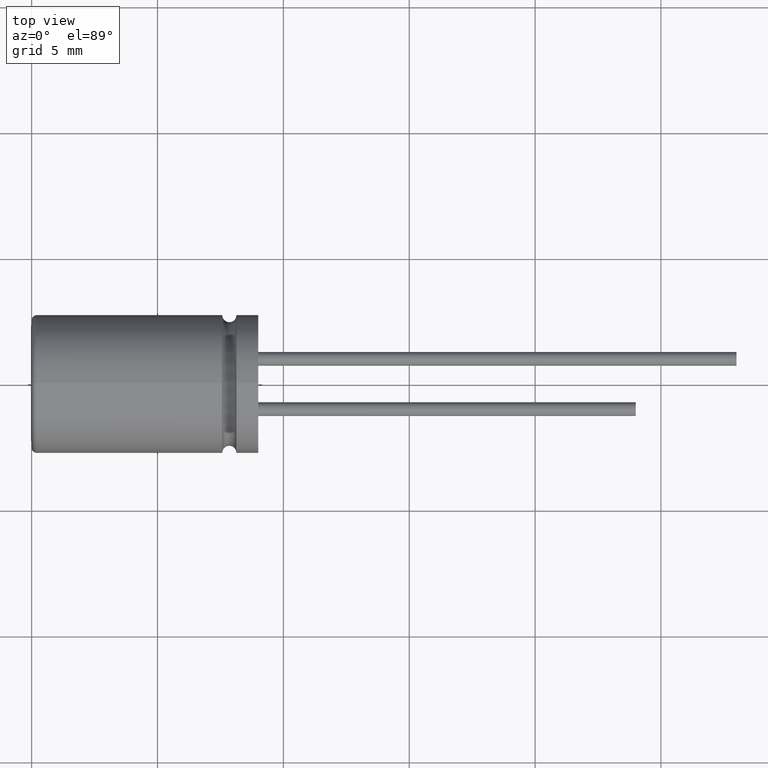
[diagram: clean part render]
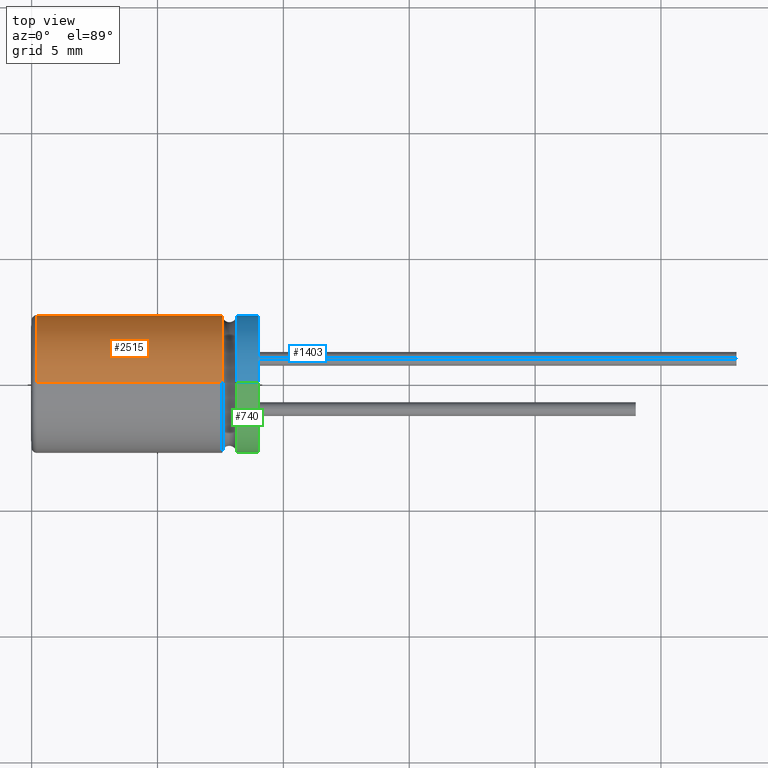
[diagram: same view with three faces highlighted in distinct colors, each labeled with its STEP entity id]
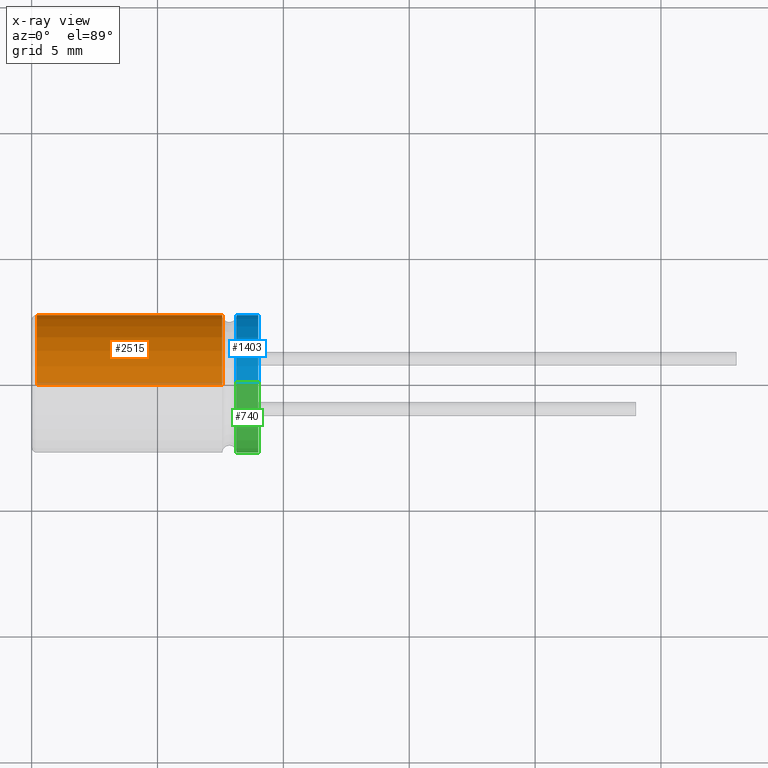
[diagram: x-ray of the same camera — body ghosted, the three highlighted faces saturated]
A machine part, top view with three faces highlighted in distinct colors.
The next image is the same camera in x-ray (body ghosted, the three faces saturated) — at least one of them is partly hidden behind the body in this view.
Their STEP definitions:

[orange] entity #2515 — the highlighted cylindrical surface (partial cylindrical patch) has radius 2.75 mm, axis along (-1, -0, -0).
#67 = FACE_OUTER_BOUND ( 'NONE', #2545, .T. ) ;
#186 = VECTOR ( 'NONE', #1826, 1000.000000000000000 ) ;
#238 = EDGE_CURVE ( 'NONE', #1297, #407, #1152, .T. ) ;
#252 = ORIENTED_EDGE ( 'NONE', *, *, #708, .F. ) ;
#281 = CARTESIAN_POINT ( 'NONE',  ( 0.2000000000000005100, 0.0000000000000000000, 0.0000000000000000000 ) ) ;
#285 = ORIENTED_EDGE ( 'NONE', *, *, #603, .F. ) ;
#407 = VERTEX_POINT ( 'NONE', #2466 ) ;
#603 = EDGE_CURVE ( 'NONE', #2948, #663, #1058, .T. ) ;
#663 = VERTEX_POINT ( 'NONE', #1021 ) ;
#708 = EDGE_CURVE ( 'NONE', #1297, #2948, #1396, .T. ) ;
#1021 = CARTESIAN_POINT ( 'NONE',  ( 0.2000000000000005100, 0.0000000000000000000, 2.750000000000000000 ) ) ;
#1058 = LINE ( 'NONE', #1434, #2098 ) ;
#1152 = LINE ( 'NONE', #1518, #186 ) ;
#1297 = VERTEX_POINT ( 'NONE', #2637 ) ;
#1396 = CIRCLE ( 'NONE', #1809, 2.750000000000000000 ) ;
#1434 = CARTESIAN_POINT ( 'NONE',  ( 9.000000000000000000, 0.0000000000000000000, 2.750000000000000000 ) ) ;
#1518 = CARTESIAN_POINT ( 'NONE',  ( 9.000000000000000000, 3.367778697655221000E-016, -2.750000000000000000 ) ) ;
#1593 = DIRECTION ( 'NONE',  ( -1.000000000000000000, -0.0000000000000000000, -0.0000000000000000000 ) ) ;
#1611 = CARTESIAN_POINT ( 'NONE',  ( 7.571249999999998300, 3.367778697655221000E-016, 2.750000000000000000 ) ) ;
#1809 = AXIS2_PLACEMENT_3D ( 'NONE', #2642, #2088, #2898 ) ;
#1826 = DIRECTION ( 'NONE',  ( -1.000000000000000000, -0.0000000000000000000, -0.0000000000000000000 ) ) ;
#1855 = CIRCLE ( 'NONE', #1959, 2.750000000000000000 ) ;
#1959 = AXIS2_PLACEMENT_3D ( 'NONE', #281, #2108, #2598 ) ;
#2006 = ORIENTED_EDGE ( 'NONE', *, *, #238, .T. ) ;
#2088 = DIRECTION ( 'NONE',  ( 1.000000000000000000, -0.0000000000000000000, -0.0000000000000000000 ) ) ;
#2098 = VECTOR ( 'NONE', #3314, 1000.000000000000000 ) ;
#2108 = DIRECTION ( 'NONE',  ( 1.000000000000000000, 0.0000000000000000000, 0.0000000000000000000 ) ) ;
#2135 = AXIS2_PLACEMENT_3D ( 'NONE', #2923, #1593, #3186 ) ;
#2400 = EDGE_CURVE ( 'NONE', #407, #663, #1855, .T. ) ;
#2466 = CARTESIAN_POINT ( 'NONE',  ( 0.2000000000000005100, 3.367778697655221000E-016, -2.750000000000000000 ) ) ;
#2515 = ADVANCED_FACE ( 'NONE', ( #67 ), #2827, .T. ) ;
#2545 = EDGE_LOOP ( 'NONE', ( #252, #2006, #3209, #285 ) ) ;
#2598 = DIRECTION ( 'NONE',  ( 0.0000000000000000000, 0.0000000000000000000, -1.000000000000000000 ) ) ;
#2637 = CARTESIAN_POINT ( 'NONE',  ( 7.571249999999998300, 0.0000000000000000000, -2.750000000000000000 ) ) ;
#2642 = CARTESIAN_POINT ( 'NONE',  ( 7.571249999999999100, 0.0000000000000000000, 0.0000000000000000000 ) ) ;
#2827 = CYLINDRICAL_SURFACE ( 'NONE', #2135, 2.750000000000000000 ) ;
#2898 = DIRECTION ( 'NONE',  ( 0.0000000000000000000, 0.0000000000000000000, -1.000000000000000000 ) ) ;
#2923 = CARTESIAN_POINT ( 'NONE',  ( 9.000000000000000000, 0.0000000000000000000, 0.0000000000000000000 ) ) ;
#2948 = VERTEX_POINT ( 'NONE', #1611 ) ;
#3186 = DIRECTION ( 'NONE',  ( 0.0000000000000000000, 0.0000000000000000000, 1.000000000000000000 ) ) ;
#3209 = ORIENTED_EDGE ( 'NONE', *, *, #2400, .T. ) ;
#3314 = DIRECTION ( 'NONE',  ( -1.000000000000000000, -0.0000000000000000000, -0.0000000000000000000 ) ) ;

[blue] entity #1403 — the highlighted cylindrical surface (partial cylindrical patch) has radius 2.75 mm, axis along (-1, -0, -0).
#383 = EDGE_LOOP ( 'NONE', ( #1598, #2711, #1791, #1494 ) ) ;
#514 = VERTEX_POINT ( 'NONE', #2984 ) ;
#580 = CARTESIAN_POINT ( 'NONE',  ( 8.133749999999999100, 0.0000000000000000000, 2.750000000000000000 ) ) ;
#795 = EDGE_CURVE ( 'NONE', #514, #3092, #805, .T. ) ;
#805 = CIRCLE ( 'NONE', #1547, 2.750000000000000000 ) ;
#844 = EDGE_CURVE ( 'NONE', #1136, #514, #2185, .T. ) ;
#893 = AXIS2_PLACEMENT_3D ( 'NONE', #2438, #2126, #3191 ) ;
#971 = VECTOR ( 'NONE', #2933, 1000.000000000000000 ) ;
#1068 = CARTESIAN_POINT ( 'NONE',  ( 9.000000000000000000, 3.367778697655221000E-016, -2.750000000000000000 ) ) ;
#1092 = CARTESIAN_POINT ( 'NONE',  ( 8.133749999999999100, 0.0000000000000000000, 0.0000000000000000000 ) ) ;
#1136 = VERTEX_POINT ( 'NONE', #1692 ) ;
#1174 = CARTESIAN_POINT ( 'NONE',  ( 9.000000000000000000, 0.0000000000000000000, 2.750000000000000000 ) ) ;
#1288 = CARTESIAN_POINT ( 'NONE',  ( 9.000000000000000000, 0.0000000000000000000, 0.0000000000000000000 ) ) ;
#1330 = DIRECTION ( 'NONE',  ( 0.0000000000000000000, 0.0000000000000000000, -1.000000000000000000 ) ) ;
#1403 = ADVANCED_FACE ( 'NONE', ( #2475 ), #3265, .T. ) ;
#1494 = ORIENTED_EDGE ( 'NONE', *, *, #1540, .F. ) ;
#1540 = EDGE_CURVE ( 'NONE', #3039, #3092, #2167, .T. ) ;
#1547 = AXIS2_PLACEMENT_3D ( 'NONE', #1092, #2915, #1330 ) ;
#1555 = DIRECTION ( 'NONE',  ( -1.000000000000000000, -0.0000000000000000000, -0.0000000000000000000 ) ) ;
#1598 = ORIENTED_EDGE ( 'NONE', *, *, #2972, .F. ) ;
#1692 = CARTESIAN_POINT ( 'NONE',  ( 9.000000000000000000, 3.367778697655221000E-016, -2.750000000000000000 ) ) ;
#1791 = ORIENTED_EDGE ( 'NONE', *, *, #795, .T. ) ;
#1932 = DIRECTION ( 'NONE',  ( -1.000000000000000000, -0.0000000000000000000, -0.0000000000000000000 ) ) ;
#2126 = DIRECTION ( 'NONE',  ( 1.000000000000000000, 0.0000000000000000000, 0.0000000000000000000 ) ) ;
#2167 = LINE ( 'NONE', #1174, #2514 ) ;
#2185 = LINE ( 'NONE', #1068, #971 ) ;
#2414 = DIRECTION ( 'NONE',  ( 0.0000000000000000000, 0.0000000000000000000, 1.000000000000000000 ) ) ;
#2438 = CARTESIAN_POINT ( 'NONE',  ( 9.000000000000000000, 0.0000000000000000000, 0.0000000000000000000 ) ) ;
#2475 = FACE_OUTER_BOUND ( 'NONE', #383, .T. ) ;
#2496 = CARTESIAN_POINT ( 'NONE',  ( 9.000000000000000000, 0.0000000000000000000, 2.750000000000000000 ) ) ;
#2514 = VECTOR ( 'NONE', #1932, 1000.000000000000000 ) ;
#2711 = ORIENTED_EDGE ( 'NONE', *, *, #844, .T. ) ;
#2859 = AXIS2_PLACEMENT_3D ( 'NONE', #1288, #1555, #2414 ) ;
#2915 = DIRECTION ( 'NONE',  ( 1.000000000000000000, -0.0000000000000000000, -0.0000000000000000000 ) ) ;
#2933 = DIRECTION ( 'NONE',  ( -1.000000000000000000, -0.0000000000000000000, -0.0000000000000000000 ) ) ;
#2938 = CIRCLE ( 'NONE', #893, 2.750000000000000000 ) ;
#2972 = EDGE_CURVE ( 'NONE', #1136, #3039, #2938, .T. ) ;
#2984 = CARTESIAN_POINT ( 'NONE',  ( 8.133749999999999100, 3.367778697655221000E-016, -2.750000000000000000 ) ) ;
#3039 = VERTEX_POINT ( 'NONE', #2496 ) ;
#3092 = VERTEX_POINT ( 'NONE', #580 ) ;
#3191 = DIRECTION ( 'NONE',  ( 0.0000000000000000000, 0.0000000000000000000, -1.000000000000000000 ) ) ;
#3265 = CYLINDRICAL_SURFACE ( 'NONE', #2859, 2.750000000000000000 ) ;

[green] entity #740 — the highlighted cylindrical surface (partial cylindrical patch) has radius 2.75 mm, axis along (-1, -0, -0).
#7 = DIRECTION ( 'NONE',  ( 0.0000000000000000000, 0.0000000000000000000, -1.000000000000000000 ) ) ;
#490 = CARTESIAN_POINT ( 'NONE',  ( 9.000000000000000000, 0.0000000000000000000, 0.0000000000000000000 ) ) ;
#514 = VERTEX_POINT ( 'NONE', #2984 ) ;
#580 = CARTESIAN_POINT ( 'NONE',  ( 8.133749999999999100, 0.0000000000000000000, 2.750000000000000000 ) ) ;
#650 = EDGE_CURVE ( 'NONE', #3092, #514, #2775, .T. ) ;
#740 = ADVANCED_FACE ( 'NONE', ( #3231 ), #974, .T. ) ;
#747 = DIRECTION ( 'NONE',  ( 1.000000000000000000, 0.0000000000000000000, 0.0000000000000000000 ) ) ;
#820 = EDGE_LOOP ( 'NONE', ( #1219, #923, #886, #1161 ) ) ;
#844 = EDGE_CURVE ( 'NONE', #1136, #514, #2185, .T. ) ;
#845 = AXIS2_PLACEMENT_3D ( 'NONE', #1270, #2073, #7 ) ;
#886 = ORIENTED_EDGE ( 'NONE', *, *, #1540, .T. ) ;
#923 = ORIENTED_EDGE ( 'NONE', *, *, #2822, .F. ) ;
#971 = VECTOR ( 'NONE', #2933, 1000.000000000000000 ) ;
#974 = CYLINDRICAL_SURFACE ( 'NONE', #1437, 2.750000000000000000 ) ;
#1033 = DIRECTION ( 'NONE',  ( -1.000000000000000000, -0.0000000000000000000, -0.0000000000000000000 ) ) ;
#1057 = AXIS2_PLACEMENT_3D ( 'NONE', #490, #747, #1315 ) ;
#1068 = CARTESIAN_POINT ( 'NONE',  ( 9.000000000000000000, 3.367778697655221000E-016, -2.750000000000000000 ) ) ;
#1136 = VERTEX_POINT ( 'NONE', #1692 ) ;
#1161 = ORIENTED_EDGE ( 'NONE', *, *, #650, .T. ) ;
#1174 = CARTESIAN_POINT ( 'NONE',  ( 9.000000000000000000, 0.0000000000000000000, 2.750000000000000000 ) ) ;
#1219 = ORIENTED_EDGE ( 'NONE', *, *, #844, .F. ) ;
#1270 = CARTESIAN_POINT ( 'NONE',  ( 8.133749999999999100, 0.0000000000000000000, 0.0000000000000000000 ) ) ;
#1315 = DIRECTION ( 'NONE',  ( 0.0000000000000000000, 0.0000000000000000000, -1.000000000000000000 ) ) ;
#1437 = AXIS2_PLACEMENT_3D ( 'NONE', #2347, #1033, #2927 ) ;
#1540 = EDGE_CURVE ( 'NONE', #3039, #3092, #2167, .T. ) ;
#1692 = CARTESIAN_POINT ( 'NONE',  ( 9.000000000000000000, 3.367778697655221000E-016, -2.750000000000000000 ) ) ;
#1932 = DIRECTION ( 'NONE',  ( -1.000000000000000000, -0.0000000000000000000, -0.0000000000000000000 ) ) ;
#2073 = DIRECTION ( 'NONE',  ( 1.000000000000000000, -0.0000000000000000000, -0.0000000000000000000 ) ) ;
#2167 = LINE ( 'NONE', #1174, #2514 ) ;
#2185 = LINE ( 'NONE', #1068, #971 ) ;
#2347 = CARTESIAN_POINT ( 'NONE',  ( 9.000000000000000000, 0.0000000000000000000, 0.0000000000000000000 ) ) ;
#2496 = CARTESIAN_POINT ( 'NONE',  ( 9.000000000000000000, 0.0000000000000000000, 2.750000000000000000 ) ) ;
#2514 = VECTOR ( 'NONE', #1932, 1000.000000000000000 ) ;
#2775 = CIRCLE ( 'NONE', #845, 2.750000000000000000 ) ;
#2822 = EDGE_CURVE ( 'NONE', #3039, #1136, #3239, .T. ) ;
#2927 = DIRECTION ( 'NONE',  ( 0.0000000000000000000, 0.0000000000000000000, 1.000000000000000000 ) ) ;
#2933 = DIRECTION ( 'NONE',  ( -1.000000000000000000, -0.0000000000000000000, -0.0000000000000000000 ) ) ;
#2984 = CARTESIAN_POINT ( 'NONE',  ( 8.133749999999999100, 3.367778697655221000E-016, -2.750000000000000000 ) ) ;
#3039 = VERTEX_POINT ( 'NONE', #2496 ) ;
#3092 = VERTEX_POINT ( 'NONE', #580 ) ;
#3231 = FACE_OUTER_BOUND ( 'NONE', #820, .T. ) ;
#3239 = CIRCLE ( 'NONE', #1057, 2.750000000000000000 ) ;